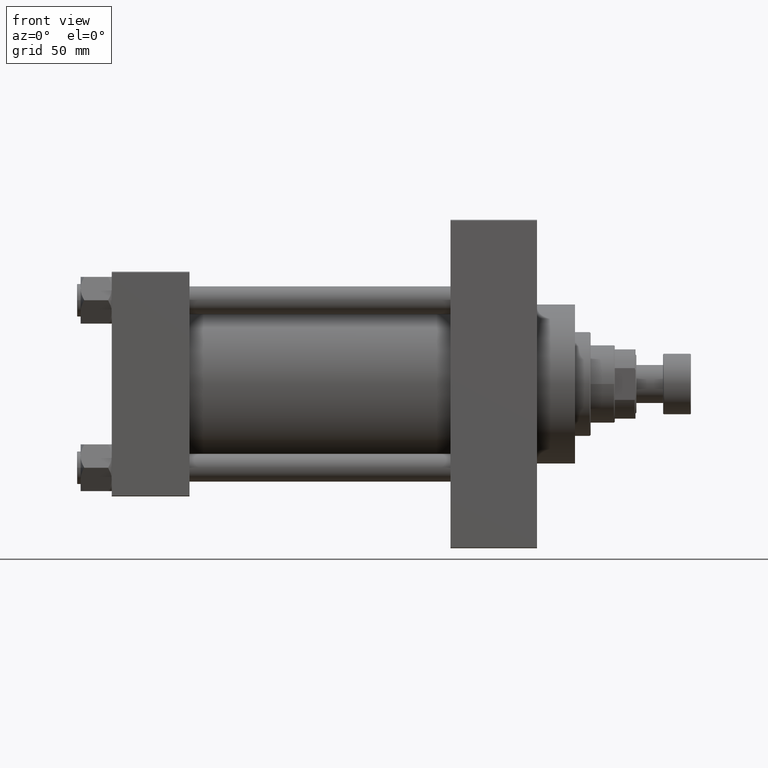
[diagram: clean part render]
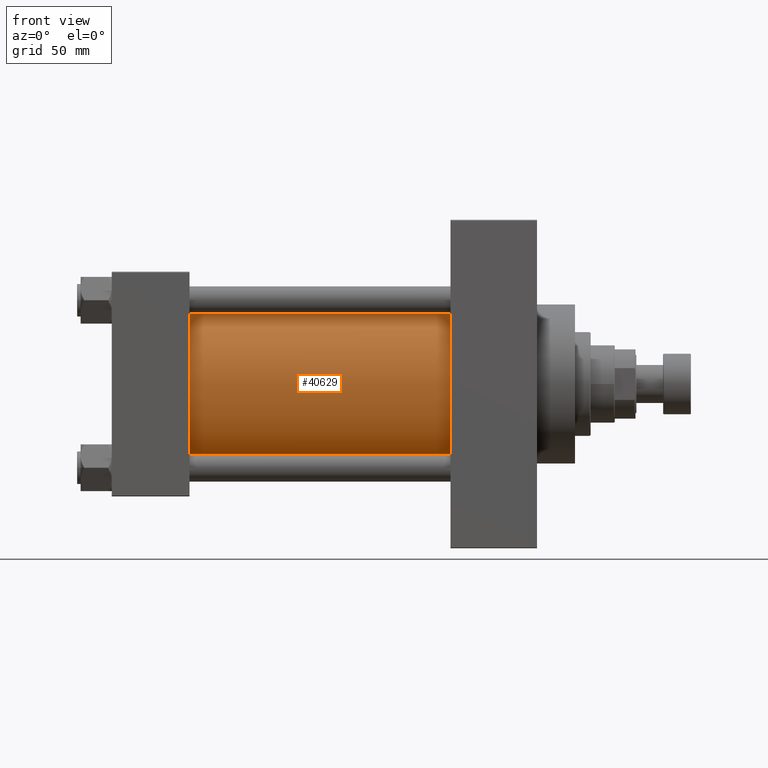
[diagram: same view with one face highlighted and labeled with its STEP entity id]
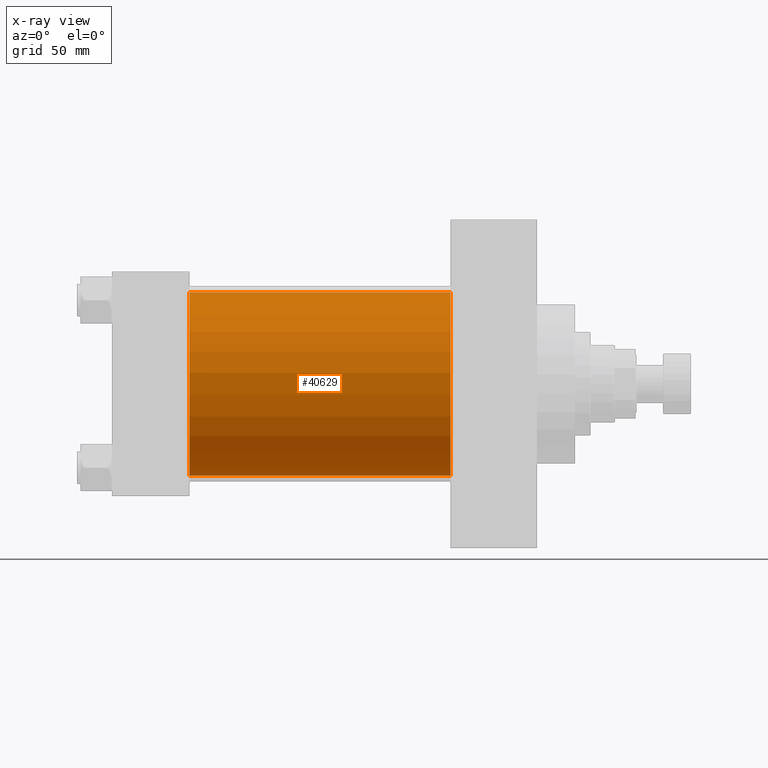
[diagram: x-ray of the same camera — body ghosted, the highlighted face saturated]
A machine part, front view. The second image highlights one B-rep face of the part: STEP entity #40629.
The next image is the same camera in x-ray: the body ghosted, the highlighted face saturated — about 2% of this face is hidden behind the body in this view.
In plain terms, the highlighted cylindrical surface (partial cylindrical patch) has radius 53 mm, axis along (-1, -0, -0).
Its self-contained STEP definition (entity closure, byte-faithful):
#460 = CARTESIAN_POINT ( 'NONE',  ( 196.0000000000000000, -2.602085213965210642E-15, 0.000000000000000000 ) ) ;
#694 = DIRECTION ( 'NONE',  ( 0.000000000000000000, 0.000000000000000000, 1.000000000000000000 ) ) ;
#1178 = CARTESIAN_POINT ( 'NONE',  ( 44.99999999999998579, -2.602085213965210642E-15, 53.00000000000000711 ) ) ;
#2173 = AXIS2_PLACEMENT_3D ( 'NONE', #16609, #12234, #34378 ) ;
#2520 = VERTEX_POINT ( 'NONE', #12598 ) ;
#2974 = DIRECTION ( 'NONE',  ( 1.000000000000000000, -0.000000000000000000, 0.000000000000000000 ) ) ;
#3373 = EDGE_CURVE ( 'NONE', #18957, #37808, #32426, .T. ) ;
#6923 = EDGE_CURVE ( 'NONE', #18957, #2520, #31714, .T. ) ;
#7557 = VERTEX_POINT ( 'NONE', #22351 ) ;
#10121 = EDGE_CURVE ( 'NONE', #37808, #7557, #40219, .T. ) ;
#12234 = DIRECTION ( 'NONE',  ( 1.000000000000000000, 0.000000000000000000, 0.000000000000000000 ) ) ;
#12598 = CARTESIAN_POINT ( 'NONE',  ( 196.0000000000000000, 3.888542821515762466E-15, -53.00000000000000711 ) ) ;
#14043 = ORIENTED_EDGE ( 'NONE', *, *, #6923, .F. ) ;
#14404 = DIRECTION ( 'NONE',  ( 0.000000000000000000, 0.000000000000000000, 1.000000000000000000 ) ) ;
#16609 = CARTESIAN_POINT ( 'NONE',  ( 196.0000000000000000, -2.602085213965210642E-15, 0.000000000000000000 ) ) ;
#16657 = EDGE_CURVE ( 'NONE', #2520, #7557, #22615, .T. ) ;
#17121 = VECTOR ( 'NONE', #44279, 1000.000000000000000 ) ;
#18130 = AXIS2_PLACEMENT_3D ( 'NONE', #460, #18727, #694 ) ;
#18727 = DIRECTION ( 'NONE',  ( -1.000000000000000000, -0.000000000000000000, -0.000000000000000000 ) ) ;
#18957 = VERTEX_POINT ( 'NONE', #28687 ) ;
#19449 = FACE_OUTER_BOUND ( 'NONE', #41712, .T. ) ;
#21472 = CARTESIAN_POINT ( 'NONE',  ( 196.0000000000000000, -2.602085213965210642E-15, 53.00000000000000711 ) ) ;
#22351 = CARTESIAN_POINT ( 'NONE',  ( 44.99999999999998579, 3.888542821515762466E-15, -53.00000000000000711 ) ) ;
#22615 = LINE ( 'NONE', #29455, #17121 ) ;
#28687 = CARTESIAN_POINT ( 'NONE',  ( 196.0000000000000000, -2.602085213965210642E-15, 53.00000000000000711 ) ) ;
#29455 = CARTESIAN_POINT ( 'NONE',  ( 196.0000000000000000, 3.888542821515762466E-15, -53.00000000000000711 ) ) ;
#30127 = AXIS2_PLACEMENT_3D ( 'NONE', #39694, #2974, #14404 ) ;
#31714 = CIRCLE ( 'NONE', #2173, 53.00000000000000711 ) ;
#32426 = LINE ( 'NONE', #21472, #37054 ) ;
#32865 = ORIENTED_EDGE ( 'NONE', *, *, #10121, .T. ) ;
#32953 = ORIENTED_EDGE ( 'NONE', *, *, #3373, .T. ) ;
#34378 = DIRECTION ( 'NONE',  ( 0.000000000000000000, 0.000000000000000000, -1.000000000000000000 ) ) ;
#36297 = DIRECTION ( 'NONE',  ( -1.000000000000000000, -0.000000000000000000, -0.000000000000000000 ) ) ;
#37054 = VECTOR ( 'NONE', #36297, 1000.000000000000000 ) ;
#37808 = VERTEX_POINT ( 'NONE', #1178 ) ;
#39694 = CARTESIAN_POINT ( 'NONE',  ( 44.99999999999998579, -2.602085213965210642E-15, 0.000000000000000000 ) ) ;
#40219 = CIRCLE ( 'NONE', #30127, 53.00000000000000711 ) ;
#40629 = ADVANCED_FACE ( 'NONE', ( #19449 ), #44767, .T. ) ;
#40725 = ORIENTED_EDGE ( 'NONE', *, *, #16657, .F. ) ;
#41712 = EDGE_LOOP ( 'NONE', ( #40725, #14043, #32953, #32865 ) ) ;
#44279 = DIRECTION ( 'NONE',  ( -1.000000000000000000, -0.000000000000000000, -0.000000000000000000 ) ) ;
#44767 = CYLINDRICAL_SURFACE ( 'NONE', #18130, 53.00000000000000711 ) ;